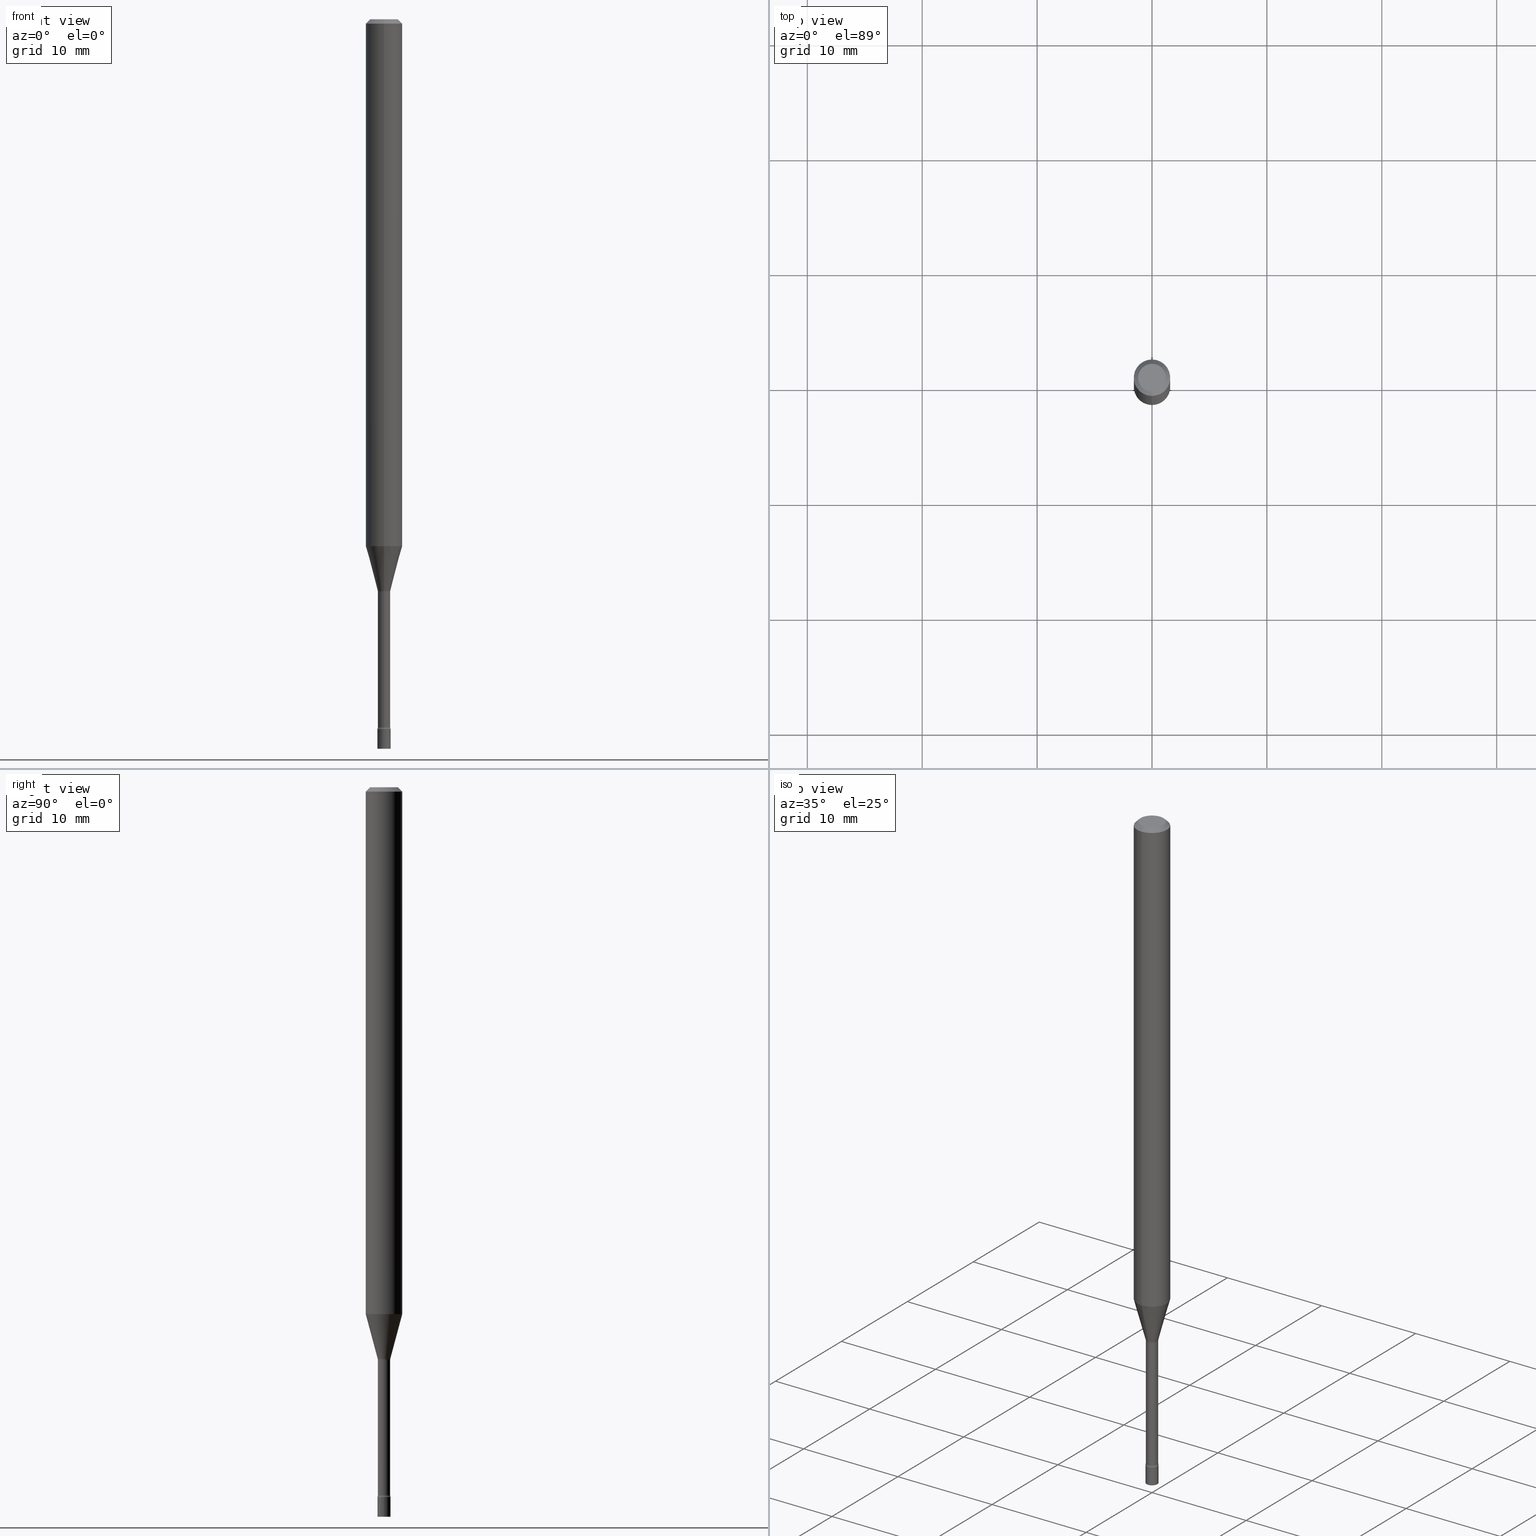
[diagram: canonical four-view strip — front | top / right | iso, engineering-drawing reading convention]
A machine part, canonical four-view strip (front | top / right | iso — engineering-drawing reading convention). The complete STEP part file that produces these views, byte-faithful:
ISO-10303-21;
HEADER;
FILE_DESCRIPTION (( 'STEP AP203' ),
    '1' );
FILE_NAME ('03597.STEP',
    '2024-03-08T22:01:18',
    ( '' ),
    ( '' ),
    'SwSTEP 2.0',
    'SolidWorks 2023',
    '' );
FILE_SCHEMA (( 'CONFIG_CONTROL_DESIGN' ));
ENDSEC;

DATA;
#1 = VECTOR ( 'NONE', #246, 39.37007874015748143 ) ;
#2 = AXIS2_PLACEMENT_3D ( 'NONE', #185, #353, #211 ) ;
#3 = DIRECTION ( 'NONE',  ( -6.982962677686266711E-15, -1.000000000000000000, 3.491537896468978830E-15 ) ) ;
#4 = CARTESIAN_POINT ( 'NONE',  ( 3.840629472727447874E-16, 0.04749999999999999362, -1.947592745229184119E-16 ) ) ;
#5 = DIRECTION ( 'NONE',  ( 1.000000000000000000, -6.982962677686266711E-15, 4.876176775795935793E-29 ) ) ;
#6 = CARTESIAN_POINT ( 'NONE',  ( -4.287811248607203282E-16, -0.06250000000000005551, -0.01499999999999981209 ) ) ;
#7 = ORIENTED_EDGE ( 'NONE', *, *, #263, .F. ) ;
#8 = CARTESIAN_POINT ( 'NONE',  ( 1.571166602480004515E-16, 0.02249999999999150943, -2.432000000000000384 ) ) ;
#9 = PERSON_AND_ORGANIZATION ( #343, #93 ) ;
#10 = ORIENTED_EDGE ( 'NONE', *, *, #340, .F. ) ;
#11 = APPLICATION_CONTEXT ( 'configuration controlled 3d designs of mechanical parts and assemblies' ) ;
#12 = VECTOR ( 'NONE', #216, 39.37007874015748143 ) ;
#13 = LOCAL_TIME ( 17, 1, 18.00000000000000000, #381 ) ;
#14 = CARTESIAN_POINT ( 'NONE',  ( 5.947380136642253002E-29, -8.491282616066530991E-15, -2.432000000000000384 ) ) ;
#15 = DIRECTION ( 'NONE',  ( 1.839019923739596371E-15, 0.2588190451025244032, 0.9659258262890673130 ) ) ;
#16 = DIRECTION ( 'NONE',  ( -6.982962677686266711E-15, -1.000000000000000000, 0.000000000000000000 ) ) ;
#17 = DIRECTION ( 'NONE',  ( -6.982962677686265922E-15, -1.000000000000000000, 3.491537896468978436E-15 ) ) ;
#18 = EDGE_CURVE ( 'NONE', #164, #354, #352, .T. ) ;
#19 = FACE_OUTER_BOUND ( 'NONE', #447, .T. ) ;
#20 = CARTESIAN_POINT ( 'NONE',  ( 4.788376799881579969E-29, -6.836754174782015396E-15, -1.958092501787273232 ) ) ;
#21 = FACE_OUTER_BOUND ( 'NONE', #128, .T. ) ;
#22 = CARTESIAN_POINT ( 'NONE',  ( 0.02249999999999999917, -8.885820007355804997E-15, -2.500000000000000000 ) ) ;
#23 = VECTOR ( 'NONE', #513, 39.37007874015748143 ) ;
#24 = FACE_OUTER_BOUND ( 'NONE', #239, .T. ) ;
#25 = DIRECTION ( 'NONE',  ( -6.982962677686266711E-15, -1.000000000000000000, 0.000000000000000000 ) ) ;
#26 = PERSON_AND_ORGANIZATION_ROLE ( 'creator' ) ;
#27 = DIRECTION ( 'NONE',  ( -2.445429312206103475E-29, 3.491537896468978830E-15, 1.000000000000000000 ) ) ;
#28 = DIRECTION ( 'NONE',  ( -2.445429312206103195E-29, 3.491537896468978830E-15, 1.000000000000000000 ) ) ;
#29 = COORDINATED_UNIVERSAL_TIME_OFFSET ( 5, 0, .BEHIND. ) ;
#30 = EDGE_CURVE ( 'NONE', #189, #365, #309, .T. ) ;
#31 = FACE_OUTER_BOUND ( 'NONE', #75, .T. ) ;
#32 = ORIENTED_EDGE ( 'NONE', *, *, #396, .F. ) ;
#33 = CIRCLE ( 'NONE', #147, 0.02249999999999999917 ) ;
#34 = CARTESIAN_POINT ( 'NONE',  ( 0.000000000000000000, 0.000000000000000000, 0.000000000000000000 ) ) ;
#35 = CIRCLE ( 'NONE', #441, 0.02249999999999999917 ) ;
#36 = CC_DESIGN_APPROVAL ( #61, ( #502 ) ) ;
#37 = CARTESIAN_POINT ( 'NONE',  ( 4.788376799881579969E-29, -6.836754174782015396E-15, -1.958092501787273232 ) ) ;
#38 = DIRECTION ( 'NONE',  ( 1.000000000000000000, -6.982962677686269077E-15, 0.000000000000000000 ) ) ;
#39 = APPLICATION_PROTOCOL_DEFINITION ( 'international standard', 'config_control_design', 1994, #225 ) ;
#40 = ORIENTED_EDGE ( 'NONE', *, *, #87, .T. ) ;
#41 = FACE_OUTER_BOUND ( 'NONE', #457, .T. ) ;
#42 = DIRECTION ( 'NONE',  ( -2.445429312206103475E-29, 3.491537896468978830E-15, 1.000000000000000000 ) ) ;
#43 = ADVANCED_FACE ( 'NONE', ( #19 ), #514, .F. ) ;
#44 = DIRECTION ( 'NONE',  ( 1.000000000000000000, 0.000000000000000000, 0.000000000000000000 ) ) ;
#45 = CARTESIAN_POINT ( 'NONE',  ( 3.668143968309162377E-31, -5.237306844703478624E-17, -0.01500000000000003067 ) ) ;
#46 = AXIS2_PLACEMENT_3D ( 'NONE', #56, #377, #315 ) ;
#47 = DIRECTION ( 'NONE',  ( -2.445429312206103475E-29, 3.491537896468978830E-15, 1.000000000000000000 ) ) ;
#48 = ORIENTED_EDGE ( 'NONE', *, *, #355, .T. ) ;
#49 = LINE ( 'NONE', #52, #406 ) ;
#50 = DIRECTION ( 'NONE',  ( -2.445429312206103475E-29, 3.491537896468978830E-15, 1.000000000000000000 ) ) ;
#51 = EDGE_LOOP ( 'NONE', ( #10, #366, #274, #496 ) ) ;
#52 = CARTESIAN_POINT ( 'NONE',  ( 1.539114621044086185E-16, 0.02166111260565713875, -1.958092501787273232 ) ) ;
#53 = EDGE_CURVE ( 'NONE', #161, #453, #103, .T. ) ;
#54 = ORIENTED_EDGE ( 'NONE', *, *, #487, .F. ) ;
#55 = DIRECTION ( 'NONE',  ( -2.445429312206103475E-29, 3.491537896468978830E-15, 1.000000000000000000 ) ) ;
#56 = CARTESIAN_POINT ( 'NONE',  ( 5.932171463552647132E-29, -8.469568661610591604E-15, -2.425780876267511932 ) ) ;
#57 = EDGE_LOOP ( 'NONE', ( #194, #172, #118, #346 ) ) ;
#58 = EDGE_CURVE ( 'NONE', #442, #161, #73, .T. ) ;
#59 = ORIENTED_EDGE ( 'NONE', *, *, #117, .T. ) ;
#60 = ADVANCED_FACE ( 'NONE', ( #231 ), #482, .T. ) ;
#61 = APPROVAL ( #187, 'UNSPECIFIED' ) ;
#62 = VECTOR ( 'NONE', #173, 39.37007874015748143 ) ;
#63 = DIRECTION ( 'NONE',  ( -6.982962677686265922E-15, -1.000000000000000000, 4.370956789862821150E-15 ) ) ;
#64 = VERTEX_POINT ( 'NONE', #140 ) ;
#65 = DIRECTION ( 'NONE',  ( -2.445429312206103475E-29, 3.491537896468978830E-15, 1.000000000000000000 ) ) ;
#66 = DATE_TIME_ROLE ( 'classification_date' ) ;
#67 = DIRECTION ( 'NONE',  ( 2.445429312206103475E-29, -3.491537896468978830E-15, -1.000000000000000000 ) ) ;
#68 = CARTESIAN_POINT ( 'NONE',  ( 4.797870655073343922E-29, -6.850309322346566951E-15, -1.961974787463811154 ) ) ;
#69 = CC_DESIGN_PERSON_AND_ORGANIZATION_ASSIGNMENT ( #112, #184, ( #472 ) ) ;
#70 = AXIS2_PLACEMENT_3D ( 'NONE', #45, #445, #364 ) ;
#71 = VERTEX_POINT ( 'NONE', #318 ) ;
#72 = APPROVAL_PERSON_ORGANIZATION ( #389, #61, #212 ) ;
#73 = LINE ( 'NONE', #224, #181 ) ;
#74 = EDGE_CURVE ( 'NONE', #442, #348, #410, .T. ) ;
#75 = EDGE_LOOP ( 'NONE', ( #299, #285, #59, #48 ) ) ;
#76 = AXIS2_PLACEMENT_3D ( 'NONE', #465, #98, #422 ) ;
#77 = ORIENTED_EDGE ( 'NONE', *, *, #331, .T. ) ;
#78 = DIRECTION ( 'NONE',  ( -2.445429312206103475E-29, 3.491537896468978830E-15, 1.000000000000000000 ) ) ;
#79 = ORIENTED_EDGE ( 'NONE', *, *, #238, .F. ) ;
#80 = CYLINDRICAL_SURFACE ( 'NONE', #405, 0.02249999999999999917 ) ;
#81 = EDGE_LOOP ( 'NONE', ( #448, #277, #90, #519 ) ) ;
#82 = TOROIDAL_SURFACE ( 'NONE', #398, 0.03615000000000005709, 0.01500000000000000812 ) ;
#83 = AXIS2_PLACEMENT_3D ( 'NONE', #245, #409, #328 ) ;
#84 = DIRECTION ( 'NONE',  ( -6.982962677686265922E-15, -1.000000000000000000, 3.491537896468978436E-15 ) ) ;
#85 = DIRECTION ( 'NONE',  ( 6.982962677686265922E-15, 1.000000000000000000, -3.483106191921935554E-15 ) ) ;
#86 = CARTESIAN_POINT ( 'NONE',  ( -1.571166602478815307E-16, -0.02250000000000849237, -2.432000000000000384 ) ) ;
#87 = EDGE_CURVE ( 'NONE', #376, #244, #91, .T. ) ;
#88 = ORIENTED_EDGE ( 'NONE', *, *, #53, .F. ) ;
#89 = FACE_OUTER_BOUND ( 'NONE', #121, .T. ) ;
#90 = ORIENTED_EDGE ( 'NONE', *, *, #136, .T. ) ;
#91 = CIRCLE ( 'NONE', #391, 0.04749999999999999362 ) ;
#92 = AXIS2_PLACEMENT_3D ( 'NONE', #349, #338, #85 ) ;
#93 = ORGANIZATION ( 'UNSPECIFIED', 'UNSPECIFIED', '' ) ;
#94 = CARTESIAN_POINT ( 'NONE',  ( -1.476896606330647239E-16, -0.02115000000000002642, 7.384602651031899085E-17 ) ) ;
#95 = ADVANCED_FACE ( 'NONE', ( #41 ), #439, .T. ) ;
#96 = ORIENTED_EDGE ( 'NONE', *, *, #53, .T. ) ;
#97 = DATE_AND_TIME ( #384, #325 ) ;
#98 = DIRECTION ( 'NONE',  ( 1.000000000000000000, -7.105427357601001070E-15, 4.926316201173236580E-29 ) ) ;
#99 = EDGE_LOOP ( 'NONE', ( #207, #156, #464, #419 ) ) ;
#100 = APPROVAL_DATE_TIME ( #421, #61 ) ;
#101 = CYLINDRICAL_SURFACE ( 'NONE', #499, 0.02115000000000002642 ) ;
#102 = DIRECTION ( 'NONE',  ( 6.982962677686265922E-15, 1.000000000000000000, -3.483106191921935554E-15 ) ) ;
#103 = CIRCLE ( 'NONE', #276, 0.06250000000000000000 ) ;
#104 = EDGE_LOOP ( 'NONE', ( #485, #108, #188, #296 ) ) ;
#105 = CARTESIAN_POINT ( 'NONE',  ( 3.668143968309162377E-31, -5.237306844703478624E-17, -0.01500000000000003067 ) ) ;
#106 = CARTESIAN_POINT ( 'NONE',  ( 4.415662064651821440E-29, -6.304599098316888834E-15, -1.805679699107027192 ) ) ;
#107 = AXIS2_PLACEMENT_3D ( 'NONE', #294, #470, #341 ) ;
#108 = ORIENTED_EDGE ( 'NONE', *, *, #314, .T. ) ;
#109 = DATE_TIME_ROLE ( 'creation_date' ) ;
#110 = DIRECTION ( 'NONE',  ( 2.438088387897960049E-29, -3.491481338843145188E-15, -1.000000000000000000 ) ) ;
#111 = EDGE_CURVE ( 'NONE', #354, #164, #288, .T. ) ;
#112 = PERSON_AND_ORGANIZATION ( #343, #93 ) ;
#113 = EDGE_LOOP ( 'NONE', ( #269, #243, #77, #236 ) ) ;
#114 = CARTESIAN_POINT ( 'NONE',  ( 1.598721155460820456E-16, 0.02249999999999151290, -2.432000000000000384 ) ) ;
#115 = AXIS2_PLACEMENT_3D ( 'NONE', #14, #423, #166 ) ;
#116 = CIRCLE ( 'NONE', #478, 0.02114999999999999866 ) ;
#117 = EDGE_CURVE ( 'NONE', #376, #197, #473, .T. ) ;
#118 = ORIENTED_EDGE ( 'NONE', *, *, #30, .T. ) ;
#119 = DIRECTION ( 'NONE',  ( -6.982962677686266711E-15, -1.000000000000000000, 3.491537896468978830E-15 ) ) ;
#120 = EDGE_CURVE ( 'NONE', #354, #515, #512, .T. ) ;
#121 = EDGE_LOOP ( 'NONE', ( #267, #126, #201, #414 ) ) ;
#122 = APPLICATION_PROTOCOL_DEFINITION ( 'international standard', 'config_control_design', 1994, #11 ) ;
#123 = DIRECTION ( 'NONE',  ( -6.982962677686266711E-15, -1.000000000000000000, 0.000000000000000000 ) ) ;
#124 = VECTOR ( 'NONE', #254, 39.37007874015748143 ) ;
#125 = MANIFOLD_SOLID_BREP ( 'Body-Move/Copy2[1]', #490 ) ;
#126 = ORIENTED_EDGE ( 'NONE', *, *, #18, .F. ) ;
#127 = DIRECTION ( 'NONE',  ( -6.982962677686265922E-15, -1.000000000000000000, 3.491537896468978436E-15 ) ) ;
#128 = EDGE_LOOP ( 'NONE', ( #32, #133 ) ) ;
#129 = ORIENTED_EDGE ( 'NONE', *, *, #18, .T. ) ;
#130 = CIRCLE ( 'NONE', #336, 0.04749999999999999362 ) ;
#131 = DIRECTION ( 'NONE',  ( -2.445429312206103195E-29, 3.491537896468978830E-15, 1.000000000000000000 ) ) ;
#132 = ORIENTED_EDGE ( 'NONE', *, *, #162, .T. ) ;
#133 = ORIENTED_EDGE ( 'NONE', *, *, #397, .F. ) ;
#134 = AXIS2_PLACEMENT_3D ( 'NONE', #213, #110, #170 ) ;
#135 = CALENDAR_DATE ( 2024, 8, 3 ) ;
#136 = EDGE_CURVE ( 'NONE', #71, #197, #329, .T. ) ;
#137 = CYLINDRICAL_SURFACE ( 'NONE', #83, 0.02249999999999999917 ) ;
#138 = PERSON_AND_ORGANIZATION_ROLE ( 'classification_officer' ) ;
#139 = DIRECTION ( 'NONE',  ( -2.445429312206103475E-29, 3.491537896468978830E-15, 1.000000000000000000 ) ) ;
#140 = CARTESIAN_POINT ( 'NONE',  ( -0.02249999999999999917, -8.450120866041175677E-15, -2.500000000000000000 ) ) ;
#141 = FACE_OUTER_BOUND ( 'NONE', #436, .T. ) ;
#142 = DATE_AND_TIME ( #148, #13 ) ;
#143 = PLANE ( 'NONE',  #134 ) ;
#144 = EDGE_LOOP ( 'NONE', ( #428, #209, #370, #232 ) ) ;
#145 = DIRECTION ( 'NONE',  ( -2.445468806185136597E-29, 3.491481338843145583E-15, 1.000000000000000000 ) ) ;
#146 = LINE ( 'NONE', #386, #297 ) ;
#147 = AXIS2_PLACEMENT_3D ( 'NONE', #486, #153, #38 ) ;
#148 = CALENDAR_DATE ( 2024, 8, 3 ) ;
#149 = CARTESIAN_POINT ( 'NONE',  ( -1.476896606330055594E-16, -0.02115000000000851962, -2.425780876267511932 ) ) ;
#150 = DIMENSIONAL_EXPONENTS ( 1.000000000000000000, 0.000000000000000000, 0.000000000000000000, 0.000000000000000000, 0.000000000000000000, 0.000000000000000000, 0.000000000000000000 ) ;
#151 = ORIENTED_EDGE ( 'NONE', *, *, #154, .T. ) ;
#152 = CIRCLE ( 'NONE', #483, 0.02249999999999999917 ) ;
#153 = DIRECTION ( 'NONE',  ( -2.445468806185136597E-29, 3.491481338843145583E-15, 1.000000000000000000 ) ) ;
#154 = EDGE_CURVE ( 'NONE', #64, #253, #418, .T. ) ;
#155 = FACE_OUTER_BOUND ( 'NONE', #144, .T. ) ;
#156 = ORIENTED_EDGE ( 'NONE', *, *, #230, .T. ) ;
#157 = CC_DESIGN_PERSON_AND_ORGANIZATION_ASSIGNMENT ( #9, #279, ( #402 ) ) ;
#158 = CARTESIAN_POINT ( 'NONE',  ( 1.550759520797014538E-16, 0.02114999999999158178, -2.425780876267511932 ) ) ;
#159 = CIRCLE ( 'NONE', #261, 0.02249999999999999917 ) ;
#160 = CARTESIAN_POINT ( 'NONE',  ( 4.797948141264463506E-29, -6.850198357710643082E-15, -1.961974787463811154 ) ) ;
#161 = VERTEX_POINT ( 'NONE', #345 ) ;
#162 = EDGE_CURVE ( 'NONE', #253, #365, #434, .T. ) ;
#163 = AXIS2_PLACEMENT_3D ( 'NONE', #462, #27, #210 ) ;
#164 = VERTEX_POINT ( 'NONE', #149 ) ;
#165 = CIRCLE ( 'NONE', #337, 0.01500000000000000638 ) ;
#166 = DIRECTION ( 'NONE',  ( 1.000000000000000000, -6.982962677686269077E-15, 0.000000000000000000 ) ) ;
#167 = ADVANCED_FACE ( 'NONE', ( #474 ), #272, .T. ) ;
#168 = FACE_OUTER_BOUND ( 'NONE', #57, .T. ) ;
#169 = PRODUCT_RELATED_PRODUCT_CATEGORY ( 'detail', '', ( #402 ) ) ;
#170 = DIRECTION ( 'NONE',  ( -1.000000000000000000, 6.982962677686265922E-15, -4.876176775795935793E-29 ) ) ;
#171 = VECTOR ( 'NONE', #290, 39.37007874015748143 ) ;
#172 = ORIENTED_EDGE ( 'NONE', *, *, #397, .T. ) ;
#173 = DIRECTION ( 'NONE',  ( 4.937700262164548042E-15, 0.7071067811865451302, -0.7071067811865499042 ) ) ;
#174 = PERSON_AND_ORGANIZATION ( #343, #93 ) ;
#175 = CARTESIAN_POINT ( 'NONE',  ( -0.02249999999999999917, -8.450120866041175677E-15, -2.432000000000000384 ) ) ;
#176 = MECHANICAL_CONTEXT ( 'NONE', #11, 'mechanical' ) ;
#177 = FACE_OUTER_BOUND ( 'NONE', #81, .T. ) ;
#178 = CARTESIAN_POINT ( 'NONE',  ( 3.316907271900976096E-16, 0.04749999999999999362, -1.803036623025974413E-16 ) ) ;
#179 = APPROVAL_DATE_TIME ( #270, #320 ) ;
#180 = ORIENTED_EDGE ( 'NONE', *, *, #487, .T. ) ;
#181 = VECTOR ( 'NONE', #394, 39.37007874015748854 ) ;
#182 = CONICAL_SURFACE ( 'NONE', #92, 0.06250000000000000000, 0.7853981633974483900 ) ;
#183 = DIRECTION ( 'NONE',  ( -6.982962677686266711E-15, -1.000000000000000000, 0.000000000000000000 ) ) ;
#184 = PERSON_AND_ORGANIZATION_ROLE ( 'creator' ) ;
#185 = CARTESIAN_POINT ( 'NONE',  ( 0.000000000000000000, 0.000000000000000000, 0.000000000000000000 ) ) ;
#186 = DIRECTION ( 'NONE',  ( 0.000000000000000000, 0.000000000000000000, 1.000000000000000000 ) ) ;
#187 = APPROVAL_STATUS ( 'not_yet_approved' ) ;
#188 = ORIENTED_EDGE ( 'NONE', *, *, #58, .T. ) ;
#189 = VERTEX_POINT ( 'NONE', #22 ) ;
#190 = AXIS2_PLACEMENT_3D ( 'NONE', #493, #265, #383 ) ;
#191 = ADVANCED_FACE ( 'NONE', ( #393 ), #227, .F. ) ;
#192 = APPROVAL_PERSON_ORGANIZATION ( #429, #320, #313 ) ;
#193 = DIRECTION ( 'NONE',  ( -2.445429312206103475E-29, 3.491537896468978830E-15, 1.000000000000000000 ) ) ;
#194 = ORIENTED_EDGE ( 'NONE', *, *, #154, .F. ) ;
#195 = CARTESIAN_POINT ( 'NONE',  ( -2.524341007983105646E-16, -0.03615000000000685026, -1.961974787463811154 ) ) ;
#196 = EDGE_CURVE ( 'NONE', #442, #295, #361, .T. ) ;
#197 = VERTEX_POINT ( 'NONE', #208 ) ;
#198 = DIRECTION ( 'NONE',  ( -6.982962677686265133E-15, -1.000000000000000000, 0.000000000000000000 ) ) ;
#199 = AXIS2_PLACEMENT_3D ( 'NONE', #105, #255, #264 ) ;
#200 = CONICAL_SURFACE ( 'NONE', #373, 0.02166111260566397703, 0.2617993877991496854 ) ;
#201 = ORIENTED_EDGE ( 'NONE', *, *, #237, .T. ) ;
#202 = ADVANCED_FACE ( 'NONE', ( #21 ), #143, .T. ) ;
#203 = DIRECTION ( 'NONE',  ( -2.445429312206103475E-29, 3.491537896468978830E-15, 1.000000000000000000 ) ) ;
#204 = DIRECTION ( 'NONE',  ( -6.982962677686265133E-15, -1.000000000000000000, 0.000000000000000000 ) ) ;
#205 = ORIENTED_EDGE ( 'NONE', *, *, #74, .T. ) ;
#206 = CIRCLE ( 'NONE', #459, 0.02114999999999999866 ) ;
#207 = ORIENTED_EDGE ( 'NONE', *, *, #314, .F. ) ;
#208 = CARTESIAN_POINT ( 'NONE',  ( 4.440892098501069896E-16, 0.06249999999999995143, -0.01500000000000024751 ) ) ;
#209 = ORIENTED_EDGE ( 'NONE', *, *, #476, .T. ) ;
#210 = DIRECTION ( 'NONE',  ( -6.982962677686266711E-15, -1.000000000000000000, 0.000000000000000000 ) ) ;
#211 = DIRECTION ( 'NONE',  ( -6.982962677686265922E-15, -1.000000000000000000, 3.491537896468978436E-15 ) ) ;
#212 = APPROVAL_ROLE ( '' ) ;
#213 = CARTESIAN_POINT ( 'NONE',  ( 1.571166602480021278E-16, 0.02249999999999127004, -2.500000000000000000 ) ) ;
#214 = TOROIDAL_SURFACE ( 'NONE', #46, 0.03615000000000005709, 0.01500000000000000812 ) ;
#215 = PRODUCT_DEFINITION_FORMATION_WITH_SPECIFIED_SOURCE ( 'ANY', '', #402, .NOT_KNOWN. ) ;
#216 = DIRECTION ( 'NONE',  ( -2.445468806185136877E-29, 3.491481338843145188E-15, 1.000000000000000000 ) ) ;
#217 = SHAPE_DEFINITION_REPRESENTATION ( #257, #501 ) ;
#218 = DESIGN_CONTEXT ( 'detailed design', #225, 'design' ) ;
#219 = CC_DESIGN_PERSON_AND_ORGANIZATION_ASSIGNMENT ( #505, #138, ( #502 ) ) ;
#220 = EDGE_LOOP ( 'NONE', ( #321, #339, #88, #311 ) ) ;
#221 = CARTESIAN_POINT ( 'NONE',  ( 4.364351673553919652E-16, 0.06249999999999995143, -0.01500000000000024751 ) ) ;
#222 = AXIS2_PLACEMENT_3D ( 'NONE', #271, #417, #432 ) ;
#223 = ADVANCED_FACE ( 'NONE', ( #24 ), #374, .T. ) ;
#224 = CARTESIAN_POINT ( 'NONE',  ( -1.512587408824631926E-16, -0.02166111260567081531, -1.958092501787273232 ) ) ;
#225 = APPLICATION_CONTEXT ( 'configuration controlled 3d designs of mechanical parts and assemblies' ) ;
#226 = EDGE_LOOP ( 'NONE', ( #454, #7 ) ) ;
#227 = PLANE ( 'NONE',  #308 ) ;
#228 = COORDINATED_UNIVERSAL_TIME_OFFSET ( 5, 0, .BEHIND. ) ;
#229 = CYLINDRICAL_SURFACE ( 'NONE', #262, 0.02115000000000002642 ) ;
#230 = EDGE_CURVE ( 'NONE', #295, #515, #516, .T. ) ;
#231 = FACE_OUTER_BOUND ( 'NONE', #104, .T. ) ;
#232 = ORIENTED_EDGE ( 'NONE', *, *, #237, .F. ) ;
#233 = AXIS2_PLACEMENT_3D ( 'NONE', #342, #67, #102 ) ;
#234 = CARTESIAN_POINT ( 'NONE',  ( 0.000000000000000000, 0.000000000000000000, 0.000000000000000000 ) ) ;
#235 = LOCAL_TIME ( 17, 1, 18.00000000000000000, #228 ) ;
#236 = ORIENTED_EDGE ( 'NONE', *, *, #452, .F. ) ;
#237 = EDGE_CURVE ( 'NONE', #164, #375, #372, .T. ) ;
#238 = EDGE_CURVE ( 'NONE', #161, #71, #456, .T. ) ;
#239 = EDGE_LOOP ( 'NONE', ( #484, #132 ) ) ;
#240 = ORIENTED_EDGE ( 'NONE', *, *, #30, .F. ) ;
#241 = DIRECTION ( 'NONE',  ( -6.982962677686266711E-15, -1.000000000000000000, 3.491537896468978830E-15 ) ) ;
#242 = CIRCLE ( 'NONE', #298, 0.06250000000000000000 ) ;
#243 = ORIENTED_EDGE ( 'NONE', *, *, #111, .T. ) ;
#244 = VERTEX_POINT ( 'NONE', #248 ) ;
#245 = CARTESIAN_POINT ( 'NONE',  ( 0.000000000000000000, 0.000000000000000000, 0.000000000000000000 ) ) ;
#246 = DIRECTION ( 'NONE',  ( -2.445429312206103195E-29, 3.491537896468978830E-15, 1.000000000000000000 ) ) ;
#247 = ADVANCED_FACE ( 'NONE', ( #468 ), #101, .T. ) ;
#248 = CARTESIAN_POINT ( 'NONE',  ( -3.773273898774340269E-16, -0.04749999999999999362, 1.369368256416345296E-16 ) ) ;
#249 = AXIS2_PLACEMENT_3D ( 'NONE', #37, #193, #25 ) ;
#250 = ORIENTED_EDGE ( 'NONE', *, *, #286, .T. ) ;
#251 = AXIS2_PLACEMENT_3D ( 'NONE', #160, #47, #17 ) ;
#252 = EDGE_CURVE ( 'NONE', #365, #253, #424, .T. ) ;
#253 = VERTEX_POINT ( 'NONE', #175 ) ;
#254 = DIRECTION ( 'NONE',  ( -2.445468806185136877E-29, 3.491481338843145188E-15, 1.000000000000000000 ) ) ;
#255 = DIRECTION ( 'NONE',  ( -2.445429312206103475E-29, 3.491537896468978830E-15, 1.000000000000000000 ) ) ;
#256 = COORDINATED_UNIVERSAL_TIME_OFFSET ( 5, 0, .BEHIND. ) ;
#257 = PRODUCT_DEFINITION_SHAPE ( 'NONE', 'NONE',  #472 ) ;
#258 = DIRECTION ( 'NONE',  ( -6.982962677686265922E-15, -1.000000000000000000, 3.491537896468978830E-15 ) ) ;
#259 = CARTESIAN_POINT ( 'NONE',  ( 1.502797886133206648E-16, 0.02114999999999314997, -1.961974787463811154 ) ) ;
#260 = CARTESIAN_POINT ( 'NONE',  ( 0.000000000000000000, 0.000000000000000000, 0.000000000000000000 ) ) ;
#261 = AXIS2_PLACEMENT_3D ( 'NONE', #300, #416, #431 ) ;
#262 = AXIS2_PLACEMENT_3D ( 'NONE', #234, #446, #3 ) ;
#263 = EDGE_CURVE ( 'NONE', #438, #375, #152, .T. ) ;
#264 = DIRECTION ( 'NONE',  ( -6.982962677686265922E-15, -1.000000000000000000, 3.483106191921935554E-15 ) ) ;
#265 = DIRECTION ( 'NONE',  ( -2.445429312206103475E-29, 3.491537896468978830E-15, 1.000000000000000000 ) ) ;
#266 = CC_DESIGN_PERSON_AND_ORGANIZATION_ASSIGNMENT ( #503, #26, ( #215 ) ) ;
#267 = ORIENTED_EDGE ( 'NONE', *, *, #476, .F. ) ;
#268 = CALENDAR_DATE ( 2024, 8, 3 ) ;
#269 = ORIENTED_EDGE ( 'NONE', *, *, #120, .F. ) ;
#270 = DATE_AND_TIME ( #268, #492 ) ;
#271 = CARTESIAN_POINT ( 'NONE',  ( 4.797948141264463506E-29, -6.850198357710643082E-15, -1.961974787463811154 ) ) ;
#272 = CYLINDRICAL_SURFACE ( 'NONE', #2, 0.06250000000000000000 ) ;
#273 = AXIS2_PLACEMENT_3D ( 'NONE', #511, #335, #504 ) ;
#274 = ORIENTED_EDGE ( 'NONE', *, *, #238, .T. ) ;
#275 = FACE_OUTER_BOUND ( 'NONE', #99, .T. ) ;
#276 = AXIS2_PLACEMENT_3D ( 'NONE', #310, #520, #280 ) ;
#277 = ORIENTED_EDGE ( 'NONE', *, *, #303, .T. ) ;
#278 = AXIS2_PLACEMENT_3D ( 'NONE', #392, #145, #517 ) ;
#279 = PERSON_AND_ORGANIZATION_ROLE ( 'design_owner' ) ;
#280 = DIRECTION ( 'NONE',  ( -6.982962677686265922E-15, -1.000000000000000000, 4.370956789862821150E-15 ) ) ;
#281 = LINE ( 'NONE', #6, #171 ) ;
#282 = CALENDAR_DATE ( 2024, 8, 3 ) ;
#283 = ADVANCED_FACE ( 'NONE', ( #89 ), #214, .F. ) ;
#284 = CARTESIAN_POINT ( 'NONE',  ( 5.932075659813581238E-29, -8.469705858017744086E-15, -2.425780876267511932 ) ) ;
#285 = ORIENTED_EDGE ( 'NONE', *, *, #87, .F. ) ;
#286 = EDGE_CURVE ( 'NONE', #244, #376, #130, .T. ) ;
#287 = CARTESIAN_POINT ( 'NONE',  ( 5.932171463552647132E-29, -8.469568661610591604E-15, -2.425780876267511932 ) ) ;
#288 = CIRCLE ( 'NONE', #350, 0.02115000000000005070 ) ;
#289 = CC_DESIGN_APPROVAL ( #320, ( #215 ) ) ;
#290 = DIRECTION ( 'NONE',  ( -4.851104656540964275E-15, -0.7071067811865500152, -0.7071067811865450192 ) ) ;
#291 = ADVANCED_FACE ( 'NONE', ( #357 ), #80, .T. ) ;
#292 = ADVANCED_FACE ( 'NONE', ( #155 ), #82, .F. ) ;
#293 = CARTESIAN_POINT ( 'NONE',  ( 4.440892098501065952E-16, 0.06249999999999367173, -1.805679699107027414 ) ) ;
#294 = CARTESIAN_POINT ( 'NONE',  ( -2.524341007982995699E-16, -0.03615000000000852948, -2.425780876267511932 ) ) ;
#295 = VERTEX_POINT ( 'NONE', #322 ) ;
#296 = ORIENTED_EDGE ( 'NONE', *, *, #319, .F. ) ;
#297 = VECTOR ( 'NONE', #28, 39.37007874015748143 ) ;
#298 = AXIS2_PLACEMENT_3D ( 'NONE', #106, #55, #63 ) ;
#299 = ORIENTED_EDGE ( 'NONE', *, *, #303, .F. ) ;
#300 = CARTESIAN_POINT ( 'NONE',  ( 6.113672015462842613E-29, -8.728703347107864943E-15, -2.500000000000000000 ) ) ;
#301 = APPROVAL_DATE_TIME ( #467, #358 ) ;
#302 = DIRECTION ( 'NONE',  ( -6.982962677686266711E-15, -1.000000000000000000, 0.000000000000000000 ) ) ;
#303 = EDGE_CURVE ( 'NONE', #244, #71, #281, .T. ) ;
#304 = DIRECTION ( 'NONE',  ( -2.445468806185136597E-29, 3.491481338843145583E-15, 1.000000000000000000 ) ) ;
#305 = DIRECTION ( 'NONE',  ( -2.445429312206103195E-29, 3.491537896468978830E-15, 1.000000000000000000 ) ) ;
#306 = CC_DESIGN_PERSON_AND_ORGANIZATION_ASSIGNMENT ( #174, #344, ( #215 ) ) ;
#307 =( CONVERSION_BASED_UNIT ( 'INCH', #509 ) LENGTH_UNIT ( ) NAMED_UNIT ( #150 ) );
#308 = AXIS2_PLACEMENT_3D ( 'NONE', #8, #131, #258 ) ;
#309 = LINE ( 'NONE', #351, #124 ) ;
#310 = CARTESIAN_POINT ( 'NONE',  ( 4.415662064651821440E-29, -6.304599098316888834E-15, -1.805679699107027192 ) ) ;
#311 = ORIENTED_EDGE ( 'NONE', *, *, #58, .F. ) ;
#312 = CARTESIAN_POINT ( 'NONE',  ( 0.000000000000000000, 0.000000000000000000, 0.000000000000000000 ) ) ;
#313 = APPROVAL_ROLE ( '' ) ;
#314 = EDGE_CURVE ( 'NONE', #295, #442, #477, .T. ) ;
#315 = DIRECTION ( 'NONE',  ( -6.982962677686265922E-15, -1.000000000000000000, 3.491537896468978436E-15 ) ) ;
#316 = MANIFOLD_SOLID_BREP ( 'Body-Move/Copy2[2]', #440 ) ;
#317 = CONICAL_SURFACE ( 'NONE', #233, 0.06250000000000000000, 0.7853981633974483900 ) ;
#318 = CARTESIAN_POINT ( 'NONE',  ( -4.364351673553912750E-16, -0.06250000000000005551, -0.01499999999999981209 ) ) ;
#319 = EDGE_CURVE ( 'NONE', #453, #161, #242, .T. ) ;
#320 = APPROVAL ( #475, 'UNSPECIFIED' ) ;
#321 = ORIENTED_EDGE ( 'NONE', *, *, #196, .T. ) ;
#322 = CARTESIAN_POINT ( 'NONE',  ( 2.990003359772577671E-16, 0.02166111260565713875, -1.958092501787273232 ) ) ;
#323 = AXIS2_PLACEMENT_3D ( 'NONE', #195, #479, #123 ) ;
#324 = AXIS2_PLACEMENT_3D ( 'NONE', #378, #139, #302 ) ;
#325 = LOCAL_TIME ( 17, 1, 18.00000000000000000, #510 ) ;
#326 = FACE_OUTER_BOUND ( 'NONE', #113, .T. ) ;
#327 = UNCERTAINTY_MEASURE_WITH_UNIT (LENGTH_MEASURE( 1.000000000000000082E-05 ), #307, 'distance_accuracy_value', 'NONE');
#328 = DIRECTION ( 'NONE',  ( 1.000000000000000000, -6.982962677686266711E-15, 4.876176775795935793E-29 ) ) ;
#329 = CIRCLE ( 'NONE', #199, 0.06250000000000000000 ) ;
#330 = CC_DESIGN_SECURITY_CLASSIFICATION ( #502, ( #215 ) ) ;
#331 = EDGE_CURVE ( 'NONE', #164, #348, #494, .T. ) ;
#332 = CARTESIAN_POINT ( 'NONE',  ( 5.947284087285244693E-29, -8.491420164212556881E-15, -2.432000000000000384 ) ) ;
#333 = DIRECTION ( 'NONE',  ( -2.445429312206103475E-29, 3.491537896468978830E-15, 1.000000000000000000 ) ) ;
#334 = DIRECTION ( 'NONE',  ( 6.982962677686265922E-15, 1.000000000000000000, -3.491537896468978830E-15 ) ) ;
#335 = DIRECTION ( 'NONE',  ( -2.438088387897960049E-29, 3.491481338843145188E-15, 1.000000000000000000 ) ) ;
#336 = AXIS2_PLACEMENT_3D ( 'NONE', #413, #390, #119 ) ;
#337 = AXIS2_PLACEMENT_3D ( 'NONE', #498, #455, #461 ) ;
#338 = DIRECTION ( 'NONE',  ( 2.445429312206103475E-29, -3.491537896468978830E-15, -1.000000000000000000 ) ) ;
#339 = ORIENTED_EDGE ( 'NONE', *, *, #480, .T. ) ;
#340 = EDGE_CURVE ( 'NONE', #453, #197, #146, .T. ) ;
#341 = DIRECTION ( 'NONE',  ( -6.982962677686265133E-15, -1.000000000000000000, 0.000000000000000000 ) ) ;
#342 = CARTESIAN_POINT ( 'NONE',  ( 3.668143968309162377E-31, -5.237306844703478624E-17, -0.01500000000000003067 ) ) ;
#343 = PERSON ( 'UNSPECIFIED', 'UNSPECIFIED', 'UNSPECIFIED', ('UNSPECIFIED'), ('UNSPECIFIED'), ('UNSPECIFIED') ) ;
#344 = PERSON_AND_ORGANIZATION_ROLE ( 'design_supplier' ) ;
#345 = CARTESIAN_POINT ( 'NONE',  ( -4.364351673553475918E-16, -0.06250000000000632827, -1.805679699107026970 ) ) ;
#346 = ORIENTED_EDGE ( 'NONE', *, *, #162, .F. ) ;
#347 = SECURITY_CLASSIFICATION_LEVEL ( 'unclassified' ) ;
#348 = VERTEX_POINT ( 'NONE', #466 ) ;
#349 = CARTESIAN_POINT ( 'NONE',  ( 3.668143968309162377E-31, -5.237306844703478624E-17, -0.01500000000000003067 ) ) ;
#350 = AXIS2_PLACEMENT_3D ( 'NONE', #284, #360, #16 ) ;
#351 = CARTESIAN_POINT ( 'NONE',  ( 0.02249999999999999917, -1.571166602479409911E-16, 1.097139774554085483E-30 ) ) ;
#352 = CIRCLE ( 'NONE', #163, 0.02115000000000005070 ) ;
#353 = DIRECTION ( 'NONE',  ( -2.445429312206103475E-29, 3.491537896468978830E-15, 1.000000000000000000 ) ) ;
#354 = VERTEX_POINT ( 'NONE', #158 ) ;
#355 = EDGE_CURVE ( 'NONE', #197, #71, #411, .T. ) ;
#356 = VECTOR ( 'NONE', #305, 39.37007874015748143 ) ;
#357 = FACE_OUTER_BOUND ( 'NONE', #380, .T. ) ;
#358 = APPROVAL ( #385, 'UNSPECIFIED' ) ;
#359 = ORIENTED_EDGE ( 'NONE', *, *, #331, .F. ) ;
#360 = DIRECTION ( 'NONE',  ( -2.445429312206103475E-29, 3.491537896468978830E-15, 1.000000000000000000 ) ) ;
#361 = CIRCLE ( 'NONE', #324, 0.02166111260566397703 ) ;
#362 = CARTESIAN_POINT ( 'NONE',  ( 1.502797886132613524E-16, 0.02115000000000002642, -7.384602651031899085E-17 ) ) ;
#363 = AXIS2_PLACEMENT_3D ( 'NONE', #312, #186, #44 ) ;
#364 = DIRECTION ( 'NONE',  ( -6.982962677686265922E-15, -1.000000000000000000, 3.483106191921935554E-15 ) ) ;
#365 = VERTEX_POINT ( 'NONE', #368 ) ;
#366 = ORIENTED_EDGE ( 'NONE', *, *, #319, .T. ) ;
#367 =( NAMED_UNIT ( * ) PLANE_ANGLE_UNIT ( ) SI_UNIT ( $, .RADIAN. ) );
#368 = CARTESIAN_POINT ( 'NONE',  ( 0.02249999999999999917, -8.648399276314471045E-15, -2.432000000000000384 ) ) ;
#369 = CARTESIAN_POINT ( 'NONE',  ( 4.797870655073343922E-29, -6.850309322346566951E-15, -1.961974787463811154 ) ) ;
#370 = ORIENTED_EDGE ( 'NONE', *, *, #263, .T. ) ;
#371 = DIRECTION ( 'NONE',  ( -6.982962677686266711E-15, -1.000000000000000000, 0.000000000000000000 ) ) ;
#372 = CIRCLE ( 'NONE', #107, 0.01500000000000000638 ) ;
#373 = AXIS2_PLACEMENT_3D ( 'NONE', #20, #500, #463 ) ;
#374 = PLANE ( 'NONE',  #273 ) ;
#375 = VERTEX_POINT ( 'NONE', #86 ) ;
#376 = VERTEX_POINT ( 'NONE', #4 ) ;
#377 = DIRECTION ( 'NONE',  ( -2.445429312206103475E-29, 3.491537896468978830E-15, 1.000000000000000000 ) ) ;
#378 = CARTESIAN_POINT ( 'NONE',  ( 4.788376799881579969E-29, -6.836754174782015396E-15, -1.958092501787273232 ) ) ;
#379 = DIRECTION ( 'NONE',  ( 2.445429312206103195E-29, -3.491537896468978830E-15, -1.000000000000000000 ) ) ;
#380 = EDGE_LOOP ( 'NONE', ( #507, #151, #408, #240 ) ) ;
#381 = COORDINATED_UNIVERSAL_TIME_OFFSET ( 5, 0, .BEHIND. ) ;
#382 = AXIS2_PLACEMENT_3D ( 'NONE', #34, #403, #127 ) ;
#383 = DIRECTION ( 'NONE',  ( -6.982962677686266711E-15, -1.000000000000000000, 0.000000000000000000 ) ) ;
#384 = CALENDAR_DATE ( 2024, 8, 3 ) ;
#385 = APPROVAL_STATUS ( 'not_yet_approved' ) ;
#386 = CARTESIAN_POINT ( 'NONE',  ( 4.440892098500625669E-16, 0.06250000000000000000, -2.182211185293111522E-16 ) ) ;
#387 = PLANE ( 'NONE',  #399 ) ;
#388 = ADVANCED_FACE ( 'NONE', ( #275 ), #491, .F. ) ;
#389 = PERSON_AND_ORGANIZATION ( #343, #93 ) ;
#390 = DIRECTION ( 'NONE',  ( -2.445429312206103475E-29, 3.491537896468978830E-15, 1.000000000000000000 ) ) ;
#391 = AXIS2_PLACEMENT_3D ( 'NONE', #443, #78, #241 ) ;
#392 = CARTESIAN_POINT ( 'NONE',  ( 5.947380136642253002E-29, -8.491282616066530991E-15, -2.432000000000000384 ) ) ;
#393 = FACE_OUTER_BOUND ( 'NONE', #226, .T. ) ;
#394 = DIRECTION ( 'NONE',  ( -1.807323732225326195E-15, -0.2588190451025176309, 0.9659258262890690894 ) ) ;
#395 = ORIENTED_EDGE ( 'NONE', *, *, #340, .T. ) ;
#396 = EDGE_CURVE ( 'NONE', #189, #64, #159, .T. ) ;
#397 = EDGE_CURVE ( 'NONE', #64, #189, #33, .T. ) ;
#398 = AXIS2_PLACEMENT_3D ( 'NONE', #287, #449, #84 ) ;
#399 = AXIS2_PLACEMENT_3D ( 'NONE', #178, #379, #334 ) ;
#400 = ORIENTED_EDGE ( 'NONE', *, *, #196, .F. ) ;
#401 = CARTESIAN_POINT ( 'NONE',  ( 5.947284087285244693E-29, -8.491420164212556881E-15, -2.432000000000000384 ) ) ;
#402 = PRODUCT ( '03597', '03597', '', ( #176 ) ) ;
#403 = DIRECTION ( 'NONE',  ( -2.445429312206103475E-29, 3.491537896468978830E-15, 1.000000000000000000 ) ) ;
#404 =( LENGTH_UNIT ( ) NAMED_UNIT ( * ) SI_UNIT ( $, .METRE. ) );
#405 = AXIS2_PLACEMENT_3D ( 'NONE', #407, #304, #5 ) ;
#406 = VECTOR ( 'NONE', #15, 39.37007874015748143 ) ;
#407 = CARTESIAN_POINT ( 'NONE',  ( 0.000000000000000000, 0.000000000000000000, 0.000000000000000000 ) ) ;
#408 = ORIENTED_EDGE ( 'NONE', *, *, #252, .F. ) ;
#409 = DIRECTION ( 'NONE',  ( -2.445468806185136597E-29, 3.491481338843145583E-15, 1.000000000000000000 ) ) ;
#410 = CIRCLE ( 'NONE', #323, 0.01500000000000002373 ) ;
#411 = CIRCLE ( 'NONE', #70, 0.06250000000000000000 ) ;
#412 = CC_DESIGN_APPROVAL ( #358, ( #472 ) ) ;
#413 = CARTESIAN_POINT ( 'NONE',  ( 7.070035569891530952E-46, -1.009446357678214803E-31, -2.891122444064193496E-17 ) ) ;
#414 = ORIENTED_EDGE ( 'NONE', *, *, #427, .T. ) ;
#415 = ORIENTED_EDGE ( 'NONE', *, *, #120, .T. ) ;
#416 = DIRECTION ( 'NONE',  ( -2.445468806185136597E-29, 3.491481338843145583E-15, 1.000000000000000000 ) ) ;
#417 = DIRECTION ( 'NONE',  ( -2.445429312206103475E-29, 3.491537896468978830E-15, 1.000000000000000000 ) ) ;
#418 = LINE ( 'NONE', #426, #12 ) ;
#419 = ORIENTED_EDGE ( 'NONE', *, *, #74, .F. ) ;
#420 = APPROVAL_ROLE ( '' ) ;
#421 = DATE_AND_TIME ( #135, #435 ) ;
#422 = DIRECTION ( 'NONE',  ( 7.105427357600997914E-15, 1.000000000000000000, 0.000000000000000000 ) ) ;
#423 = DIRECTION ( 'NONE',  ( -2.445468806185136597E-29, 3.491481338843145583E-15, 1.000000000000000000 ) ) ;
#424 = CIRCLE ( 'NONE', #115, 0.02249999999999999917 ) ;
#425 =( GEOMETRIC_REPRESENTATION_CONTEXT ( 3 ) GLOBAL_UNCERTAINTY_ASSIGNED_CONTEXT ( ( #327 ) ) GLOBAL_UNIT_ASSIGNED_CONTEXT ( ( #307, #367, #481 ) ) REPRESENTATION_CONTEXT ( 'NONE', 'WORKASPACE' ) );
#426 = CARTESIAN_POINT ( 'NONE',  ( -0.02249999999999999917, 1.598721155460225359E-16, -1.106760395307353780E-30 ) ) ;
#427 = EDGE_CURVE ( 'NONE', #375, #438, #35, .T. ) ;
#428 = ORIENTED_EDGE ( 'NONE', *, *, #111, .F. ) ;
#429 = PERSON_AND_ORGANIZATION ( #343, #93 ) ;
#430 = CARTESIAN_POINT ( 'NONE',  ( -1.512587408824631926E-16, -0.02166111260567081531, -1.958092501787273232 ) ) ;
#431 = DIRECTION ( 'NONE',  ( 1.000000000000000000, -6.982962677686269077E-15, 0.000000000000000000 ) ) ;
#432 = DIRECTION ( 'NONE',  ( -6.982962677686265922E-15, -1.000000000000000000, 3.491537896468978436E-15 ) ) ;
#433 = EDGE_LOOP ( 'NONE', ( #129, #415, #54, #359 ) ) ;
#434 = CIRCLE ( 'NONE', #278, 0.02249999999999999917 ) ;
#435 = LOCAL_TIME ( 17, 1, 18.00000000000000000, #256 ) ;
#436 = EDGE_LOOP ( 'NONE', ( #40, #250 ) ) ;
#437 = ADVANCED_FACE ( 'NONE', ( #177 ), #317, .T. ) ;
#438 = VERTEX_POINT ( 'NONE', #114 ) ;
#439 = CYLINDRICAL_SURFACE ( 'NONE', #382, 0.06250000000000000000 ) ;
#440 = CLOSED_SHELL ( 'NONE', ( #388, #247, #292, #437, #95, #488, #60, #167, #450, #489, #191, #283, #458, #43 ) ) ;
#441 = AXIS2_PLACEMENT_3D ( 'NONE', #401, #42, #198 ) ;
#442 = VERTEX_POINT ( 'NONE', #430 ) ;
#443 = CARTESIAN_POINT ( 'NONE',  ( 7.070035569891530952E-46, -1.009446357678214803E-31, -2.891122444064193496E-17 ) ) ;
#444 = PERSON_AND_ORGANIZATION ( #343, #93 ) ;
#445 = DIRECTION ( 'NONE',  ( -2.445429312206103475E-29, 3.491537896468978830E-15, 1.000000000000000000 ) ) ;
#446 = DIRECTION ( 'NONE',  ( -2.445429312206103475E-29, 3.491537896468978830E-15, 1.000000000000000000 ) ) ;
#447 = EDGE_LOOP ( 'NONE', ( #518, #400, #205, #180 ) ) ;
#448 = ORIENTED_EDGE ( 'NONE', *, *, #286, .F. ) ;
#449 = DIRECTION ( 'NONE',  ( -2.445429312206103475E-29, 3.491537896468978830E-15, 1.000000000000000000 ) ) ;
#450 = ADVANCED_FACE ( 'NONE', ( #31 ), #182, .T. ) ;
#451 = ORIENTED_EDGE ( 'NONE', *, *, #136, .F. ) ;
#452 = EDGE_CURVE ( 'NONE', #515, #348, #206, .T. ) ;
#453 = VERTEX_POINT ( 'NONE', #293 ) ;
#454 = ORIENTED_EDGE ( 'NONE', *, *, #427, .F. ) ;
#455 = DIRECTION ( 'NONE',  ( 1.000000000000000000, -7.105427357601001070E-15, 4.926316201173236580E-29 ) ) ;
#456 = LINE ( 'NONE', #506, #356 ) ;
#457 = EDGE_LOOP ( 'NONE', ( #96, #395, #451, #79 ) ) ;
#458 = ADVANCED_FACE ( 'NONE', ( #326 ), #229, .T. ) ;
#459 = AXIS2_PLACEMENT_3D ( 'NONE', #369, #203, #371 ) ;
#460 = CC_DESIGN_DATE_AND_TIME_ASSIGNMENT ( #142, #66, ( #502 ) ) ;
#461 = DIRECTION ( 'NONE',  ( 7.105427357601005014E-15, 1.000000000000000000, 0.000000000000000000 ) ) ;
#462 = CARTESIAN_POINT ( 'NONE',  ( 5.932075659813581238E-29, -8.469705858017744086E-15, -2.425780876267511932 ) ) ;
#463 = DIRECTION ( 'NONE',  ( -6.982962677686266711E-15, -1.000000000000000000, 0.000000000000000000 ) ) ;
#464 = ORIENTED_EDGE ( 'NONE', *, *, #452, .T. ) ;
#465 = CARTESIAN_POINT ( 'NONE',  ( 2.568611989773242010E-16, 0.03614999999999315289, -1.961974787463811154 ) ) ;
#466 = CARTESIAN_POINT ( 'NONE',  ( -1.476896606330165541E-16, -0.02115000000000685082, -1.961974787463811154 ) ) ;
#467 = DATE_AND_TIME ( #282, #235 ) ;
#468 = FACE_OUTER_BOUND ( 'NONE', #433, .T. ) ;
#469 = ADVANCED_FACE ( 'NONE', ( #168 ), #137, .T. ) ;
#470 = DIRECTION ( 'NONE',  ( -1.000000000000000000, 6.982962677686265922E-15, -4.883557194083112340E-29 ) ) ;
#471 = APPROVAL_PERSON_ORGANIZATION ( #444, #358, #420 ) ;
#472 = PRODUCT_DEFINITION ( 'UNKNOWN', '', #215, #218 ) ;
#473 = LINE ( 'NONE', #221, #62 ) ;
#474 = FACE_OUTER_BOUND ( 'NONE', #51, .T. ) ;
#475 = APPROVAL_STATUS ( 'not_yet_approved' ) ;
#476 = EDGE_CURVE ( 'NONE', #354, #438, #165, .T. ) ;
#477 = CIRCLE ( 'NONE', #190, 0.02166111260566397703 ) ;
#478 = AXIS2_PLACEMENT_3D ( 'NONE', #68, #65, #183 ) ;
#479 = DIRECTION ( 'NONE',  ( -1.000000000000000000, 6.982962677686265922E-15, -4.883557194083112340E-29 ) ) ;
#480 = EDGE_CURVE ( 'NONE', #295, #453, #49, .T. ) ;
#481 =( NAMED_UNIT ( * ) SI_UNIT ( $, .STERADIAN. ) SOLID_ANGLE_UNIT ( ) );
#482 = CONICAL_SURFACE ( 'NONE', #249, 0.02166111260566397703, 0.2617993877991496854 ) ;
#483 = AXIS2_PLACEMENT_3D ( 'NONE', #332, #50, #204 ) ;
#484 = ORIENTED_EDGE ( 'NONE', *, *, #252, .T. ) ;
#485 = ORIENTED_EDGE ( 'NONE', *, *, #480, .F. ) ;
#486 = CARTESIAN_POINT ( 'NONE',  ( 6.113672015462842613E-29, -8.728703347107864943E-15, -2.500000000000000000 ) ) ;
#487 = EDGE_CURVE ( 'NONE', #348, #515, #116, .T. ) ;
#488 = ADVANCED_FACE ( 'NONE', ( #508 ), #200, .T. ) ;
#489 = ADVANCED_FACE ( 'NONE', ( #141 ), #387, .F. ) ;
#490 = CLOSED_SHELL ( 'NONE', ( #291, #223, #469, #202 ) ) ;
#491 = TOROIDAL_SURFACE ( 'NONE', #251, 0.03615000000000000158, 0.01500000000000002720 ) ;
#492 = LOCAL_TIME ( 17, 1, 18.00000000000000000, #29 ) ;
#493 = CARTESIAN_POINT ( 'NONE',  ( 4.788376799881579969E-29, -6.836754174782015396E-15, -1.958092501787273232 ) ) ;
#494 = LINE ( 'NONE', #94, #23 ) ;
#495 = DIRECTION ( 'NONE',  ( -6.982962677686266711E-15, -1.000000000000000000, 3.491537896468978830E-15 ) ) ;
#496 = ORIENTED_EDGE ( 'NONE', *, *, #355, .F. ) ;
#497 = CC_DESIGN_DATE_AND_TIME_ASSIGNMENT ( #97, #109, ( #472 ) ) ;
#498 = CARTESIAN_POINT ( 'NONE',  ( 2.568611989773359353E-16, 0.03614999999999159164, -2.425780876267511932 ) ) ;
#499 = AXIS2_PLACEMENT_3D ( 'NONE', #260, #333, #495 ) ;
#500 = DIRECTION ( 'NONE',  ( -2.445429312206103475E-29, 3.491537896468978830E-15, 1.000000000000000000 ) ) ;
#501 = ADVANCED_BREP_SHAPE_REPRESENTATION ( '03597', ( #125, #316, #363 ), #425 ) ;
#502 = SECURITY_CLASSIFICATION ( '', '', #347 ) ;
#503 = PERSON_AND_ORGANIZATION ( #343, #93 ) ;
#504 = DIRECTION ( 'NONE',  ( 1.000000000000000000, -6.982962677686265922E-15, 4.876176775795935793E-29 ) ) ;
#505 = PERSON_AND_ORGANIZATION ( #343, #93 ) ;
#506 = CARTESIAN_POINT ( 'NONE',  ( -4.364351673553916201E-16, -0.06250000000000000000, 2.182211185293111522E-16 ) ) ;
#507 = ORIENTED_EDGE ( 'NONE', *, *, #396, .T. ) ;
#508 = FACE_OUTER_BOUND ( 'NONE', #220, .T. ) ;
#509 = LENGTH_MEASURE_WITH_UNIT ( LENGTH_MEASURE( 0.02539999999999999897 ), #404 );
#510 = COORDINATED_UNIVERSAL_TIME_OFFSET ( 5, 0, .BEHIND. ) ;
#511 = CARTESIAN_POINT ( 'NONE',  ( 5.947380136642253002E-29, -8.491282616066530991E-15, -2.432000000000000384 ) ) ;
#512 = LINE ( 'NONE', #362, #1 ) ;
#513 = DIRECTION ( 'NONE',  ( -2.445429312206103195E-29, 3.491537896468978830E-15, 1.000000000000000000 ) ) ;
#514 = TOROIDAL_SURFACE ( 'NONE', #222, 0.03615000000000000158, 0.01500000000000002720 ) ;
#515 = VERTEX_POINT ( 'NONE', #259 ) ;
#516 = CIRCLE ( 'NONE', #76, 0.01500000000000003240 ) ;
#517 = DIRECTION ( 'NONE',  ( 1.000000000000000000, -6.982962677686269077E-15, 0.000000000000000000 ) ) ;
#518 = ORIENTED_EDGE ( 'NONE', *, *, #230, .F. ) ;
#519 = ORIENTED_EDGE ( 'NONE', *, *, #117, .F. ) ;
#520 = DIRECTION ( 'NONE',  ( -2.445429312206103475E-29, 3.491537896468978830E-15, 1.000000000000000000 ) ) ;
ENDSEC;
END-ISO-10303-21;
